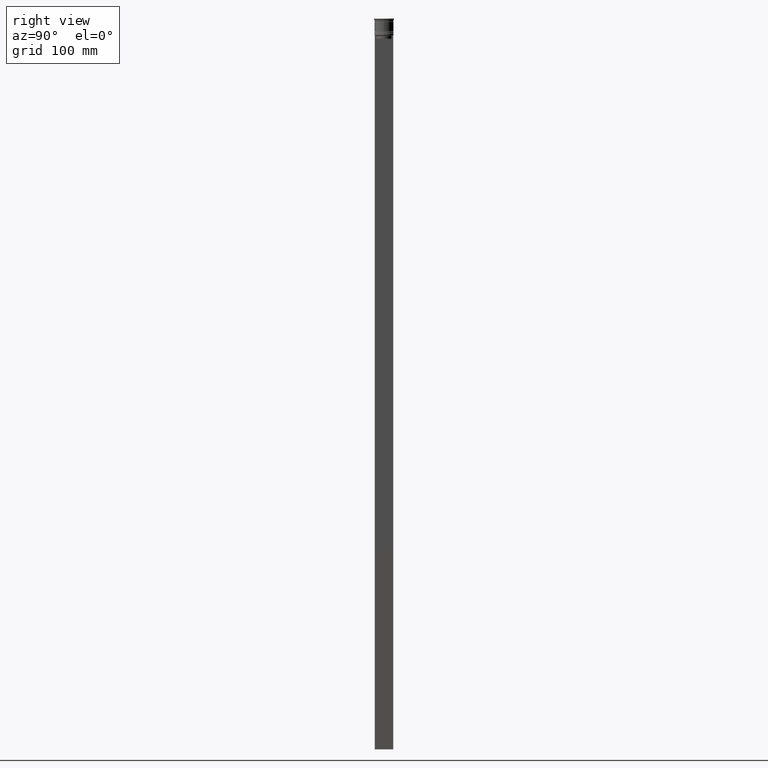
[diagram: clean part render]
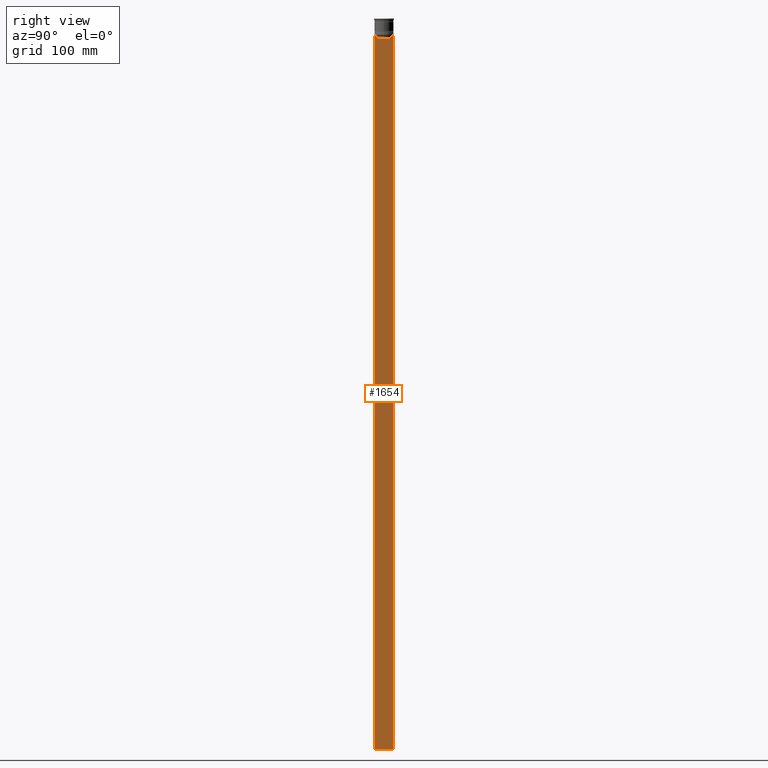
[diagram: same view with one face highlighted and labeled with its STEP entity id]
A machine part, right view. The second image highlights one B-rep face of the part: STEP entity #1654.
In plain terms, the highlighted planar face has unit normal (-1, 0, 0).
Its self-contained STEP definition (entity closure, byte-faithful):
#18 = LINE ( 'NONE', #549, #500 ) ;
#30 = CARTESIAN_POINT ( 'NONE',  ( 0.5000000000000001110, 7.750000000000002665, 1.532224567009066840 ) ) ;
#42 = DIRECTION ( 'NONE',  ( 0.000000000000000000, 0.000000000000000000, -1.000000000000000000 ) ) ;
#64 = LINE ( 'NONE', #923, #2065 ) ;
#67 = CARTESIAN_POINT ( 'NONE',  ( 0.5000000000000001110, 7.750000000000002665, -614.0000000000000000 ) ) ;
#82 = FACE_OUTER_BOUND ( 'NONE', #2093, .T. ) ;
#120 = ORIENTED_EDGE ( 'NONE', *, *, #1412, .T. ) ;
#123 = VECTOR ( 'NONE', #2146, 1000.000000000000000 ) ;
#148 = CARTESIAN_POINT ( 'NONE',  ( 0.5000000000000001110, -6.881860213634098500, -14.00000000000000178 ) ) ;
#218 = DIRECTION ( 'NONE',  ( 0.000000000000000000, 0.000000000000000000, -1.000000000000000000 ) ) ;
#224 = ORIENTED_EDGE ( 'NONE', *, *, #1314, .T. ) ;
#245 = LINE ( 'NONE', #1573, #1780 ) ;
#249 = B_SPLINE_CURVE_WITH_KNOTS ( 'NONE', 3,
 ( #1857, #1674, #764, #413 ),
 .UNSPECIFIED., .F., .F.,
 ( 4, 4 ),
 ( 0.02996184199614751464, 0.03067452609193705923 ),
 .UNSPECIFIED. ) ;
#303 = EDGE_CURVE ( 'NONE', #497, #2116, #980, .T. ) ;
#322 = CARTESIAN_POINT ( 'NONE',  ( 0.5000000000000001110, 6.714736947114692711, -14.16668390704818847 ) ) ;
#378 = CARTESIAN_POINT ( 'NONE',  ( 0.5000000000000001110, 6.380438856379708312, -17.00000000000000000 ) ) ;
#388 = DIRECTION ( 'NONE',  ( -1.000000000000000000, 0.000000000000000000, 0.000000000000000000 ) ) ;
#413 = CARTESIAN_POINT ( 'NONE',  ( 0.5000000000000001110, -6.881860213634098500, -14.00000000000000178 ) ) ;
#437 = ORIENTED_EDGE ( 'NONE', *, *, #1741, .T. ) ;
#452 = VERTEX_POINT ( 'NONE', #1004 ) ;
#480 = PLANE ( 'NONE',  #645 ) ;
#497 = VERTEX_POINT ( 'NONE', #1370 ) ;
#500 = VECTOR ( 'NONE', #2268, 1000.000000000000000 ) ;
#512 = EDGE_CURVE ( 'NONE', #1588, #2060, #636, .T. ) ;
#549 = CARTESIAN_POINT ( 'NONE',  ( 0.5000000000000001110, -7.749999999999999112, -14.00000000000000178 ) ) ;
#562 = ORIENTED_EDGE ( 'NONE', *, *, #303, .T. ) ;
#614 = CARTESIAN_POINT ( 'NONE',  ( 0.5000000000000001110, -6.380438856379708312, -14.50000000000000000 ) ) ;
#636 = LINE ( 'NONE', #2169, #1391 ) ;
#645 = AXIS2_PLACEMENT_3D ( 'NONE', #1198, #388, #1458 ) ;
#710 = VECTOR ( 'NONE', #42, 1000.000000000000000 ) ;
#764 = CARTESIAN_POINT ( 'NONE',  ( 0.5000000000000001110, -6.714736947305993908, -14.16668390685738821 ) ) ;
#766 = VERTEX_POINT ( 'NONE', #148 ) ;
#790 = DIRECTION ( 'NONE',  ( 0.000000000000000000, 1.000000000000000000, 0.000000000000000000 ) ) ;
#890 = ORIENTED_EDGE ( 'NONE', *, *, #967, .T. ) ;
#918 = EDGE_CURVE ( 'NONE', #2259, #452, #1326, .T. ) ;
#923 = CARTESIAN_POINT ( 'NONE',  ( 0.5000000000000001110, -7.749999999999999112, -614.0000000000000000 ) ) ;
#967 = EDGE_CURVE ( 'NONE', #452, #2319, #245, .T. ) ;
#980 = LINE ( 'NONE', #1732, #123 ) ;
#1004 = CARTESIAN_POINT ( 'NONE',  ( 0.5000000000000001110, -6.380438856379708312, -17.00000000000000000 ) ) ;
#1045 = CARTESIAN_POINT ( 'NONE',  ( 0.5000000000000001110, 6.547597841304911626, -14.33335192459222718 ) ) ;
#1125 = ORIENTED_EDGE ( 'NONE', *, *, #1131, .T. ) ;
#1131 = EDGE_CURVE ( 'NONE', #2060, #1629, #1268, .T. ) ;
#1197 = LINE ( 'NONE', #1935, #710 ) ;
#1198 = CARTESIAN_POINT ( 'NONE',  ( 0.5000000000000001110, -7.749999999999999112, 1.532224567009066840 ) ) ;
#1221 = CARTESIAN_POINT ( 'NONE',  ( 0.5000000000000001110, 6.380438856379708312, -14.50000000000000000 ) ) ;
#1268 = B_SPLINE_CURVE_WITH_KNOTS ( 'NONE', 3,
 ( #2136, #322, #1045, #1221 ),
 .UNSPECIFIED., .F., .F.,
 ( 4, 4 ),
 ( 0.01172465562756038263, 0.01243276816391822651 ),
 .UNSPECIFIED. ) ;
#1277 = EDGE_CURVE ( 'NONE', #1629, #2259, #1197, .T. ) ;
#1314 = EDGE_CURVE ( 'NONE', #2116, #1911, #64, .T. ) ;
#1323 = CARTESIAN_POINT ( 'NONE',  ( 0.5000000000000001110, 6.380438856379708312, -14.50000000000000000 ) ) ;
#1326 = LINE ( 'NONE', #1678, #1584 ) ;
#1355 = ORIENTED_EDGE ( 'NONE', *, *, #918, .T. ) ;
#1370 = CARTESIAN_POINT ( 'NONE',  ( 0.5000000000000001110, -7.749999999999999112, -14.00000000000000178 ) ) ;
#1391 = VECTOR ( 'NONE', #1928, 1000.000000000000000 ) ;
#1410 = CARTESIAN_POINT ( 'NONE',  ( 0.5000000000000001110, -7.749999999999999112, -614.0000000000000000 ) ) ;
#1412 = EDGE_CURVE ( 'NONE', #2319, #766, #249, .T. ) ;
#1439 = CARTESIAN_POINT ( 'NONE',  ( 0.5000000000000001110, 6.881860213634098500, -14.00000000000000178 ) ) ;
#1458 = DIRECTION ( 'NONE',  ( 0.000000000000000000, 0.000000000000000000, 1.000000000000000000 ) ) ;
#1534 = ORIENTED_EDGE ( 'NONE', *, *, #512, .T. ) ;
#1545 = EDGE_CURVE ( 'NONE', #1588, #1911, #2329, .T. ) ;
#1573 = CARTESIAN_POINT ( 'NONE',  ( 0.5000000000000001110, -6.380438856379708312, 0.000000000000000000 ) ) ;
#1584 = VECTOR ( 'NONE', #2262, 1000.000000000000000 ) ;
#1588 = VERTEX_POINT ( 'NONE', #2400 ) ;
#1629 = VERTEX_POINT ( 'NONE', #1323 ) ;
#1654 = ADVANCED_FACE ( 'NONE', ( #82 ), #480, .F. ) ;
#1674 = CARTESIAN_POINT ( 'NONE',  ( 0.5000000000000001110, -6.547597841511247019, -14.33335192438652150 ) ) ;
#1678 = CARTESIAN_POINT ( 'NONE',  ( 0.5000000000000001110, 6.399999999999999467, -17.00000000000000000 ) ) ;
#1712 = DIRECTION ( 'NONE',  ( -0.000000000000000000, -0.000000000000000000, 1.000000000000000000 ) ) ;
#1732 = CARTESIAN_POINT ( 'NONE',  ( 0.5000000000000001110, -7.749999999999999112, 1.532224567009066840 ) ) ;
#1741 = EDGE_CURVE ( 'NONE', #766, #497, #18, .T. ) ;
#1780 = VECTOR ( 'NONE', #1712, 1000.000000000000000 ) ;
#1857 = CARTESIAN_POINT ( 'NONE',  ( 0.5000000000000001110, -6.380438856379708312, -14.50000000000000000 ) ) ;
#1911 = VERTEX_POINT ( 'NONE', #67 ) ;
#1917 = ORIENTED_EDGE ( 'NONE', *, *, #1277, .T. ) ;
#1928 = DIRECTION ( 'NONE',  ( 0.000000000000000000, -1.000000000000000000, 0.000000000000000000 ) ) ;
#1935 = CARTESIAN_POINT ( 'NONE',  ( 0.5000000000000001110, 6.380438856379708312, 0.000000000000000000 ) ) ;
#1953 = VECTOR ( 'NONE', #218, 1000.000000000000000 ) ;
#2060 = VERTEX_POINT ( 'NONE', #1439 ) ;
#2065 = VECTOR ( 'NONE', #790, 1000.000000000000000 ) ;
#2093 = EDGE_LOOP ( 'NONE', ( #1534, #1125, #1917, #1355, #890, #120, #437, #562, #224, #2131 ) ) ;
#2116 = VERTEX_POINT ( 'NONE', #1410 ) ;
#2131 = ORIENTED_EDGE ( 'NONE', *, *, #1545, .F. ) ;
#2136 = CARTESIAN_POINT ( 'NONE',  ( 0.5000000000000001110, 6.881860213634098500, -14.00000000000000178 ) ) ;
#2146 = DIRECTION ( 'NONE',  ( 0.000000000000000000, 0.000000000000000000, -1.000000000000000000 ) ) ;
#2169 = CARTESIAN_POINT ( 'NONE',  ( 0.5000000000000001110, -7.749999999999999112, -14.00000000000000178 ) ) ;
#2259 = VERTEX_POINT ( 'NONE', #378 ) ;
#2262 = DIRECTION ( 'NONE',  ( 0.000000000000000000, -1.000000000000000000, 0.000000000000000000 ) ) ;
#2268 = DIRECTION ( 'NONE',  ( 0.000000000000000000, -1.000000000000000000, 0.000000000000000000 ) ) ;
#2319 = VERTEX_POINT ( 'NONE', #614 ) ;
#2329 = LINE ( 'NONE', #30, #1953 ) ;
#2400 = CARTESIAN_POINT ( 'NONE',  ( 0.5000000000000001110, 7.750000000000002665, -14.00000000000000178 ) ) ;